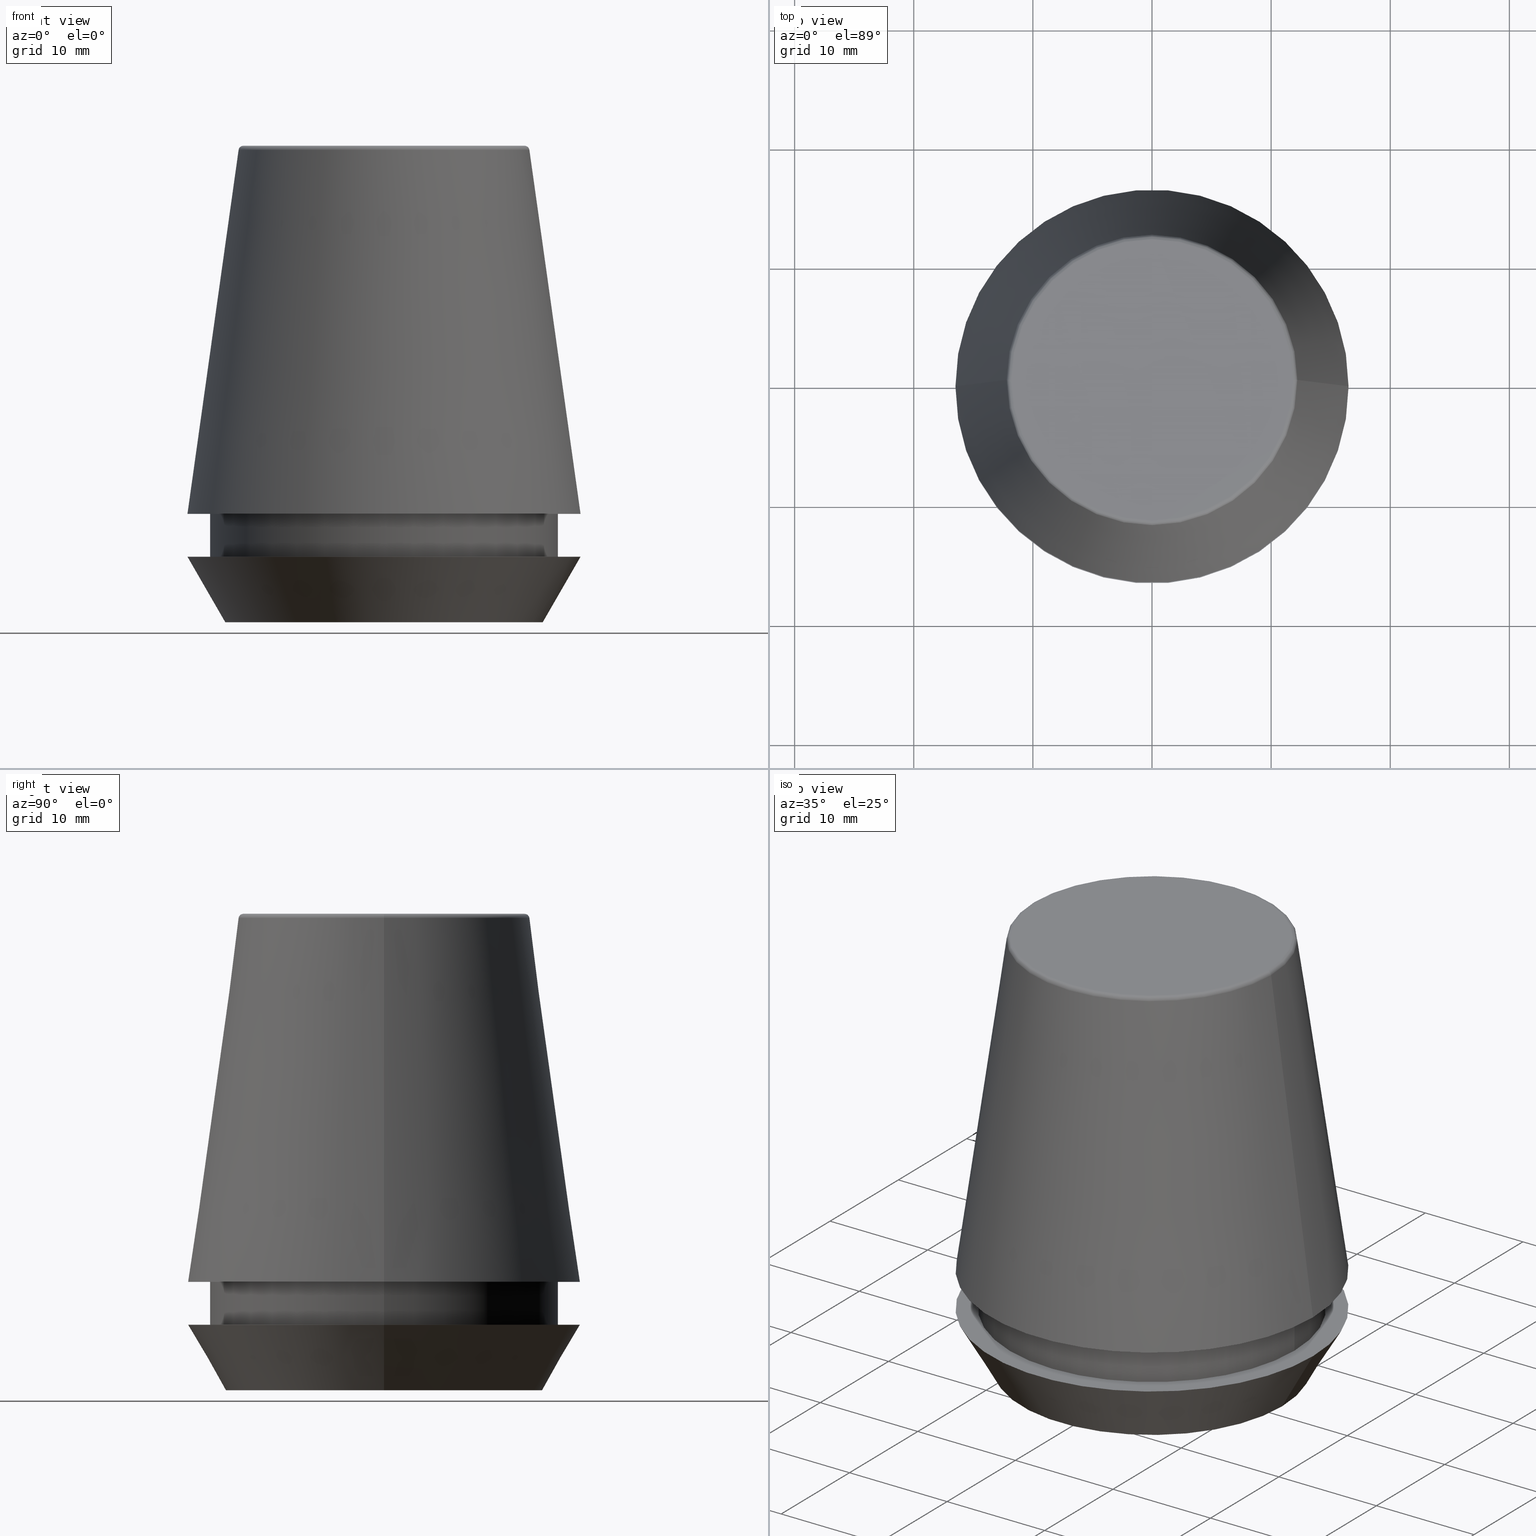
[diagram: canonical four-view strip — front | top / right | iso, engineering-drawing reading convention]
A machine part, canonical four-view strip (front | top / right | iso — engineering-drawing reading convention). The complete STEP part file that produces these views, byte-faithful:
ISO-10303-21;
HEADER;
FILE_DESCRIPTION (( 'STEP AP203' ),
    '1' );
FILE_NAME ('TAP COLLET ER 32G  16.0 X 12.0.STEP',
    '2019-04-09T11:30:25',
    ( '' ),
    ( '' ),
    'SwSTEP 2.0',
    'SolidWorks 2014',
    '' );
FILE_SCHEMA (( 'CONFIG_CONTROL_DESIGN' ));
ENDSEC;

DATA;
#1 = PLANE ( 'NONE',  #160 ) ;
#2 = COORDINATED_UNIVERSAL_TIME_OFFSET ( 5, 30, .AHEAD. ) ;
#3 = EDGE_CURVE ( 'NONE', #340, #167, #367, .T. ) ;
#4 = DIRECTION ( 'NONE',  ( -1.000000000000000000, 0.0000000000000000000, -0.0000000000000000000 ) ) ;
#5 = CARTESIAN_POINT ( 'NONE',  ( 13.32457351945710200, 0.0000000000000000000, 0.0000000000000000000 ) ) ;
#6 = CIRCLE ( 'NONE', #246, 16.50000000000000000 ) ;
#7 =( NAMED_UNIT ( * ) SI_UNIT ( $, .STERADIAN. ) SOLID_ANGLE_UNIT ( ) );
#8 = VERTEX_POINT ( 'NONE', #136 ) ;
#9 = CC_DESIGN_DATE_AND_TIME_ASSIGNMENT ( #182, #317, ( #25 ) ) ;
#10 = EDGE_LOOP ( 'NONE', ( #279, #210 ) ) ;
#11 = PERSON_AND_ORGANIZATION_ROLE ( 'creator' ) ;
#12 = APPROVAL_DATE_TIME ( #261, #168 ) ;
#13 = CARTESIAN_POINT ( 'NONE',  ( 11.80989888411031400, 0.0000000000000000000, 39.60000000000000100 ) ) ;
#14 = AXIS2_PLACEMENT_3D ( 'NONE', #174, #96, #296 ) ;
#15 = AXIS2_PLACEMENT_3D ( 'NONE', #350, #219, #184 ) ;
#16 = PERSON_AND_ORGANIZATION ( #202, #97 ) ;
#17 = DIRECTION ( 'NONE',  ( -0.0000000000000000000, -0.0000000000000000000, 1.000000000000000000 ) ) ;
#18 = ORIENTED_EDGE ( 'NONE', *, *, #190, .F. ) ;
#19 = ADVANCED_FACE ( 'NONE', ( #283 ), #242, .T. ) ;
#20 = CARTESIAN_POINT ( 'NONE',  ( 14.60000000000000000, 0.0000000000000000000, 9.099999999999997900 ) ) ;
#21 = CC_DESIGN_PERSON_AND_ORGANIZATION_ASSIGNMENT ( #49, #347, ( #25 ) ) ;
#22 = ADVANCED_BREP_SHAPE_REPRESENTATION ( 'TAP COLLET ER 32G  16.0 X 12.0', ( #135, #300 ), #254 ) ;
#23 = CARTESIAN_POINT ( 'NONE',  ( -13.32457351945710200, 1.631789631060672300E-015, 0.0000000000000000000 ) ) ;
#24 = AXIS2_PLACEMENT_3D ( 'NONE', #119, #301, #228 ) ;
#25 = SECURITY_CLASSIFICATION ( '', '', #101 ) ;
#26 = ADVANCED_FACE ( 'NONE', ( #253 ), #98, .F. ) ;
#27 = AXIS2_PLACEMENT_3D ( 'NONE', #311, #181, #4 ) ;
#28 = CARTESIAN_POINT ( 'NONE',  ( 0.0000000000000000000, 0.0000000000000000000, 40.00000000000000700 ) ) ;
#29 = DIRECTION ( 'NONE',  ( 0.1391731009600586900, 1.704378926181473100E-017, -0.9902680687415712500 ) ) ;
#30 = CARTESIAN_POINT ( 'NONE',  ( -14.60000000000000000, 1.787984326755135800E-015, 5.500000000000005300 ) ) ;
#31 = PLANE ( 'NONE',  #50 ) ;
#32 = AXIS2_PLACEMENT_3D ( 'NONE', #295, #265, #109 ) ;
#33 = FACE_OUTER_BOUND ( 'NONE', #380, .T. ) ;
#34 = AXIS2_PLACEMENT_3D ( 'NONE', #110, #113, #221 ) ;
#35 = APPROVAL_STATUS ( 'not_yet_approved' ) ;
#36 = EDGE_CURVE ( 'NONE', #247, #327, #231, .T. ) ;
#37 = DIRECTION ( 'NONE',  ( -0.0000000000000000000, -0.0000000000000000000, 1.000000000000000000 ) ) ;
#38 = APPROVAL_DATE_TIME ( #318, #91 ) ;
#39 = EDGE_CURVE ( 'NONE', #289, #341, #310, .T. ) ;
#40 = APPROVAL ( #131, 'UNSPECIFIED' ) ;
#41 = DIRECTION ( 'NONE',  ( 1.000000000000000000, 0.0000000000000000000, 0.0000000000000000000 ) ) ;
#42 = CARTESIAN_POINT ( 'NONE',  ( 0.0000000000000000000, 0.0000000000000000000, 5.500000000000005300 ) ) ;
#43 = CARTESIAN_POINT ( 'NONE',  ( -14.60000000000000000, 1.787984326755135800E-015, 101.8074564848000400 ) ) ;
#44 = CC_DESIGN_PERSON_AND_ORGANIZATION_ASSIGNMENT ( #382, #287, ( #107 ) ) ;
#45 = AXIS2_PLACEMENT_3D ( 'NONE', #293, #201, #169 ) ;
#46 = EDGE_CURVE ( 'NONE', #247, #341, #344, .T. ) ;
#47 = CARTESIAN_POINT ( 'NONE',  ( 13.32457351945710200, 0.0000000000000000000, 0.0000000000000000000 ) ) ;
#48 = EDGE_LOOP ( 'NONE', ( #146, #263, #288, #59 ) ) ;
#49 = PERSON_AND_ORGANIZATION ( #202, #97 ) ;
#50 = AXIS2_PLACEMENT_3D ( 'NONE', #212, #259, #180 ) ;
#51 = CARTESIAN_POINT ( 'NONE',  ( -11.80989888411031400, 1.470550059081603400E-015, 40.00000000000000700 ) ) ;
#52 = CIRCLE ( 'NONE', #89, 14.60000000000000000 ) ;
#53 = CARTESIAN_POINT ( 'NONE',  ( 0.0000000000000000000, 0.0000000000000000000, 0.0000000000000000000 ) ) ;
#54 = CARTESIAN_POINT ( 'NONE',  ( 0.0000000000000000000, 0.0000000000000000000, 101.8074564848000400 ) ) ;
#55 = VERTEX_POINT ( 'NONE', #30 ) ;
#56 = AXIS2_PLACEMENT_3D ( 'NONE', #80, #355, #149 ) ;
#57 = CARTESIAN_POINT ( 'NONE',  ( 0.0000000000000000000, 0.0000000000000000000, 39.65566924038402900 ) ) ;
#58 = VECTOR ( 'NONE', #271, 1000.000000000000000 ) ;
#59 = ORIENTED_EDGE ( 'NONE', *, *, #177, .T. ) ;
#60 = CARTESIAN_POINT ( 'NONE',  ( -11.80989888411031400, 1.446295486667959300E-015, 39.60000000000000100 ) ) ;
#61 = CONICAL_SURFACE ( 'NONE', #34, 16.50032537154048700, 0.1396263401595395900 ) ;
#62 = DIRECTION ( 'NONE',  ( -0.0000000000000000000, -0.0000000000000000000, 1.000000000000000000 ) ) ;
#63 = DIRECTION ( 'NONE',  ( 1.000000000000000000, 0.0000000000000000000, 0.0000000000000000000 ) ) ;
#64 = CC_DESIGN_PERSON_AND_ORGANIZATION_ASSIGNMENT ( #166, #73, ( #107 ) ) ;
#65 = VECTOR ( 'NONE', #383, 999.9999999999998900 ) ;
#66 = EDGE_CURVE ( 'NONE', #234, #247, #328, .T. ) ;
#67 = VERTEX_POINT ( 'NONE', #278 ) ;
#68 = CC_DESIGN_APPROVAL ( #91, ( #107 ) ) ;
#69 = DIRECTION ( 'NONE',  ( 1.000000000000000000, 0.0000000000000000000, 0.0000000000000000000 ) ) ;
#70 = CYLINDRICAL_SURFACE ( 'NONE', #150, 14.60000000000000000 ) ;
#71 = DIRECTION ( 'NONE',  ( 1.000000000000000000, 0.0000000000000000000, 0.0000000000000000000 ) ) ;
#72 = FACE_OUTER_BOUND ( 'NONE', #187, .T. ) ;
#73 = PERSON_AND_ORGANIZATION_ROLE ( 'creator' ) ;
#74 = ORIENTED_EDGE ( 'NONE', *, *, #3, .F. ) ;
#75 = PERSON_AND_ORGANIZATION ( #202, #97 ) ;
#76 = CONICAL_SURFACE ( 'NONE', #137, 13.32457351945710200, 0.5235987755982927100 ) ;
#77 = ORIENTED_EDGE ( 'NONE', *, *, #39, .F. ) ;
#78 = EDGE_LOOP ( 'NONE', ( #292, #125 ) ) ;
#79 = AXIS2_PLACEMENT_3D ( 'NONE', #186, #17, #41 ) ;
#80 = CARTESIAN_POINT ( 'NONE',  ( 0.0000000000000000000, 0.0000000000000000000, 101.8074564848000400 ) ) ;
#81 = VECTOR ( 'NONE', #90, 1000.000000000000000 ) ;
#82 = ORIENTED_EDGE ( 'NONE', *, *, #95, .F. ) ;
#83 = CALENDAR_DATE ( 2019, 9, 4 ) ;
#84 = DIRECTION ( 'NONE',  ( -0.0000000000000000000, -0.0000000000000000000, 1.000000000000000000 ) ) ;
#85 = AXIS2_PLACEMENT_3D ( 'NONE', #123, #62, #63 ) ;
#86 = VERTEX_POINT ( 'NONE', #214 ) ;
#87 = PERSON_AND_ORGANIZATION ( #202, #97 ) ;
#88 = DIRECTION ( 'NONE',  ( 1.000000000000000000, 0.0000000000000000000, 0.0000000000000000000 ) ) ;
#89 = AXIS2_PLACEMENT_3D ( 'NONE', #42, #314, #276 ) ;
#90 = DIRECTION ( 'NONE',  ( -0.0000000000000000000, -0.0000000000000000000, 1.000000000000000000 ) ) ;
#91 = APPROVAL ( #35, 'UNSPECIFIED' ) ;
#92 = COORDINATED_UNIVERSAL_TIME_OFFSET ( 5, 30, .AHEAD. ) ;
#93 = LOCAL_TIME ( 17, 0, 25.00000000000000000, #284 ) ;
#94 = AXIS2_PLACEMENT_3D ( 'NONE', #243, #266, #326 ) ;
#95 = EDGE_CURVE ( 'NONE', #327, #269, #154, .T. ) ;
#96 = DIRECTION ( 'NONE',  ( -0.0000000000000000000, -0.0000000000000000000, 1.000000000000000000 ) ) ;
#97 = ORGANIZATION ( 'UNSPECIFIED', 'UNSPECIFIED', '' ) ;
#98 = PLANE ( 'NONE',  #27 ) ;
#99 =( LENGTH_UNIT ( ) NAMED_UNIT ( * ) SI_UNIT ( .MILLI., .METRE. ) );
#100 = ORIENTED_EDGE ( 'NONE', *, *, #39, .T. ) ;
#101 = SECURITY_CLASSIFICATION_LEVEL ( 'unclassified' ) ;
#102 = CARTESIAN_POINT ( 'NONE',  ( 16.50032537154048700, 2.020707065114692300E-015, 9.099999999999997900 ) ) ;
#103 = FACE_OUTER_BOUND ( 'NONE', #320, .T. ) ;
#104 = EDGE_LOOP ( 'NONE', ( #316, #115 ) ) ;
#105 = CC_DESIGN_DATE_AND_TIME_ASSIGNMENT ( #294, #227, ( #352 ) ) ;
#106 = PERSON_AND_ORGANIZATION ( #202, #97 ) ;
#107 = PRODUCT_DEFINITION_FORMATION_WITH_SPECIFIED_SOURCE ( 'ANY', '', #142, .NOT_KNOWN. ) ;
#108 = ORIENTED_EDGE ( 'NONE', *, *, #213, .F. ) ;
#109 = DIRECTION ( 'NONE',  ( 1.000000000000000000, 0.0000000000000000000, 0.0000000000000000000 ) ) ;
#110 = CARTESIAN_POINT ( 'NONE',  ( 0.0000000000000000000, 0.0000000000000000000, 9.099999999999997900 ) ) ;
#111 = AXIS2_PLACEMENT_3D ( 'NONE', #13, #196, #349 ) ;
#112 = CARTESIAN_POINT ( 'NONE',  ( 16.50032537154048700, 2.020707065114692300E-015, 9.099999999999997900 ) ) ;
#113 = DIRECTION ( 'NONE',  ( 0.0000000000000000000, 0.0000000000000000000, -1.000000000000000000 ) ) ;
#114 = SHAPE_DEFINITION_REPRESENTATION ( #376, #22 ) ;
#115 = ORIENTED_EDGE ( 'NONE', *, *, #183, .T. ) ;
#116 = CIRCLE ( 'NONE', #262, 12.20600611160694300 ) ;
#117 = DIRECTION ( 'NONE',  ( -0.0000000000000000000, -0.0000000000000000000, 1.000000000000000000 ) ) ;
#118 = DIRECTION ( 'NONE',  ( 1.000000000000000000, 0.0000000000000000000, 0.0000000000000000000 ) ) ;
#119 = CARTESIAN_POINT ( 'NONE',  ( 0.0000000000000000000, 0.0000000000000000000, 9.099999999999997900 ) ) ;
#120 = AXIS2_PLACEMENT_3D ( 'NONE', #60, #218, #158 ) ;
#121 = CARTESIAN_POINT ( 'NONE',  ( 0.0000000000000000000, 0.0000000000000000000, 9.099999999999997900 ) ) ;
#122 = EDGE_CURVE ( 'NONE', #247, #234, #116, .T. ) ;
#123 = CARTESIAN_POINT ( 'NONE',  ( 0.0000000000000000000, 0.0000000000000000000, 9.099999999999997900 ) ) ;
#124 = CC_DESIGN_PERSON_AND_ORGANIZATION_ASSIGNMENT ( #16, #11, ( #352 ) ) ;
#125 = ORIENTED_EDGE ( 'NONE', *, *, #95, .T. ) ;
#126 = FACE_OUTER_BOUND ( 'NONE', #104, .T. ) ;
#127 = CARTESIAN_POINT ( 'NONE',  ( 0.0000000000000000000, 0.0000000000000000000, 0.0000000000000000000 ) ) ;
#128 = EDGE_CURVE ( 'NONE', #55, #373, #275, .T. ) ;
#129 = CIRCLE ( 'NONE', #141, 16.50032537154048700 ) ;
#130 = PERSON_AND_ORGANIZATION_ROLE ( 'design_owner' ) ;
#131 = APPROVAL_STATUS ( 'not_yet_approved' ) ;
#132 = ORIENTED_EDGE ( 'NONE', *, *, #299, .T. ) ;
#133 = CONICAL_SURFACE ( 'NONE', #14, 13.32457351945710200, 0.5235987755982927100 ) ;
#134 = CARTESIAN_POINT ( 'NONE',  ( 14.60000000000000000, 0.0000000000000000000, 5.500000000000005300 ) ) ;
#135 = MANIFOLD_SOLID_BREP ( 'Revolve1', #374 ) ;
#136 = CARTESIAN_POINT ( 'NONE',  ( -16.50000000000000000, 2.020667218593133100E-015, 5.500000000000005300 ) ) ;
#137 = AXIS2_PLACEMENT_3D ( 'NONE', #203, #37, #69 ) ;
#138 = PERSON_AND_ORGANIZATION ( #202, #97 ) ;
#139 = EDGE_LOOP ( 'NONE', ( #230, #77 ) ) ;
#140 = VECTOR ( 'NONE', #338, 1000.000000000000000 ) ;
#141 = AXIS2_PLACEMENT_3D ( 'NONE', #237, #268, #371 ) ;
#142 = PRODUCT ( 'TAP COLLET ER 32G  16.0 X 12.0', 'TAP COLLET ER 32G  16.0 X 12.0', '', ( #313 ) ) ;
#143 = VECTOR ( 'NONE', #179, 999.9999999999998900 ) ;
#144 = CARTESIAN_POINT ( 'NONE',  ( 0.0000000000000000000, 0.0000000000000000000, 40.00000000000000700 ) ) ;
#145 = FACE_OUTER_BOUND ( 'NONE', #333, .T. ) ;
#146 = ORIENTED_EDGE ( 'NONE', *, *, #369, .F. ) ;
#147 = COORDINATED_UNIVERSAL_TIME_OFFSET ( 5, 30, .AHEAD. ) ;
#148 = CARTESIAN_POINT ( 'NONE',  ( 14.60000000000000000, 0.0000000000000000000, 101.8074564848000400 ) ) ;
#149 = DIRECTION ( 'NONE',  ( 1.000000000000000000, 0.0000000000000000000, 0.0000000000000000000 ) ) ;
#150 = AXIS2_PLACEMENT_3D ( 'NONE', #54, #359, #176 ) ;
#151 = ADVANCED_FACE ( 'NONE', ( #334, #126 ), #1, .F. ) ;
#152 = DIRECTION ( 'NONE',  ( 0.0000000000000000000, 0.0000000000000000000, -1.000000000000000000 ) ) ;
#153 = DIRECTION ( 'NONE',  ( 1.000000000000000000, 0.0000000000000000000, 0.0000000000000000000 ) ) ;
#154 = CIRCLE ( 'NONE', #372, 11.80989888411031400 ) ;
#155 = DIRECTION ( 'NONE',  ( 1.000000000000000000, 0.0000000000000000000, 0.0000000000000000000 ) ) ;
#156 = ORIENTED_EDGE ( 'NONE', *, *, #195, .T. ) ;
#157 = LOCAL_TIME ( 17, 0, 25.00000000000000000, #171 ) ;
#158 = DIRECTION ( 'NONE',  ( -1.000000000000000000, 1.224646799147352500E-016, 0.0000000000000000000 ) ) ;
#159 = ADVANCED_FACE ( 'NONE', ( #145 ), #70, .T. ) ;
#160 = AXIS2_PLACEMENT_3D ( 'NONE', #248, #152, #211 ) ;
#161 = ORIENTED_EDGE ( 'NONE', *, *, #369, .T. ) ;
#162 = DESIGN_CONTEXT ( 'detailed design', #346, 'design' ) ;
#163 = AXIS2_PLACEMENT_3D ( 'NONE', #53, #384, #88 ) ;
#164 = APPLICATION_PROTOCOL_DEFINITION ( 'international standard', 'config_control_design', 1994, #346 ) ;
#165 = ORIENTED_EDGE ( 'NONE', *, *, #264, .T. ) ;
#166 = PERSON_AND_ORGANIZATION ( #202, #97 ) ;
#167 = VERTEX_POINT ( 'NONE', #208 ) ;
#168 = APPROVAL ( #368, 'UNSPECIFIED' ) ;
#169 = DIRECTION ( 'NONE',  ( 1.000000000000000000, 0.0000000000000000000, 0.0000000000000000000 ) ) ;
#170 = PRODUCT_RELATED_PRODUCT_CATEGORY ( 'detail', '', ( #142 ) ) ;
#171 = COORDINATED_UNIVERSAL_TIME_OFFSET ( 5, 30, .AHEAD. ) ;
#172 = DIRECTION ( 'NONE',  ( 1.000000000000000000, 0.0000000000000000000, 0.0000000000000000000 ) ) ;
#173 = EDGE_CURVE ( 'NONE', #373, #340, #175, .T. ) ;
#174 = CARTESIAN_POINT ( 'NONE',  ( 0.0000000000000000000, 0.0000000000000000000, 0.0000000000000000000 ) ) ;
#175 = LINE ( 'NONE', #148, #58 ) ;
#176 = DIRECTION ( 'NONE',  ( 1.000000000000000000, 0.0000000000000000000, 0.0000000000000000000 ) ) ;
#177 = EDGE_CURVE ( 'NONE', #341, #289, #129, .T. ) ;
#178 = DIRECTION ( 'NONE',  ( -0.0000000000000000000, -0.0000000000000000000, 1.000000000000000000 ) ) ;
#179 = DIRECTION ( 'NONE',  ( 0.4999999999999947300, 0.0000000000000000000, 0.8660254037844418200 ) ) ;
#180 = DIRECTION ( 'NONE',  ( 1.000000000000000000, 0.0000000000000000000, 0.0000000000000000000 ) ) ;
#181 = DIRECTION ( 'NONE',  ( 0.0000000000000000000, 0.0000000000000000000, -1.000000000000000000 ) ) ;
#182 = DATE_AND_TIME ( #303, #157 ) ;
#183 = EDGE_CURVE ( 'NONE', #8, #86, #6, .T. ) ;
#184 = DIRECTION ( 'NONE',  ( 1.000000000000000000, 0.0000000000000000000, 0.0000000000000000000 ) ) ;
#185 = CIRCLE ( 'NONE', #111, 0.4000000000000045200 ) ;
#186 = CARTESIAN_POINT ( 'NONE',  ( 0.0000000000000000000, 0.0000000000000000000, 9.099999999999997900 ) ) ;
#187 = EDGE_LOOP ( 'NONE', ( #165, #197, #306, #260 ) ) ;
#188 =( NAMED_UNIT ( * ) PLANE_ANGLE_UNIT ( ) SI_UNIT ( $, .RADIAN. ) );
#189 = CALENDAR_DATE ( 2019, 9, 4 ) ;
#190 = EDGE_CURVE ( 'NONE', #67, #251, #387, .T. ) ;
#191 = APPROVAL_ROLE ( '' ) ;
#192 = CIRCLE ( 'NONE', #94, 16.50000000000000000 ) ;
#193 = CC_DESIGN_SECURITY_CLASSIFICATION ( #25, ( #107 ) ) ;
#194 = APPROVAL_ROLE ( '' ) ;
#195 = EDGE_CURVE ( 'NONE', #234, #269, #185, .T. ) ;
#196 = DIRECTION ( 'NONE',  ( 0.0000000000000000000, -1.000000000000000000, 0.0000000000000000000 ) ) ;
#197 = ORIENTED_EDGE ( 'NONE', *, *, #213, .T. ) ;
#198 = CALENDAR_DATE ( 2019, 9, 4 ) ;
#199 = AXIS2_PLACEMENT_3D ( 'NONE', #144, #325, #379 ) ;
#200 = EDGE_LOOP ( 'NONE', ( #108, #381, #297, #204 ) ) ;
#201 = DIRECTION ( 'NONE',  ( -0.0000000000000000000, -0.0000000000000000000, 1.000000000000000000 ) ) ;
#202 = PERSON ( 'UNSPECIFIED', 'UNSPECIFIED', 'UNSPECIFIED', ('UNSPECIFIED'), ('UNSPECIFIED'), ('UNSPECIFIED') ) ;
#203 = CARTESIAN_POINT ( 'NONE',  ( 0.0000000000000000000, 0.0000000000000000000, 0.0000000000000000000 ) ) ;
#204 = ORIENTED_EDGE ( 'NONE', *, *, #183, .F. ) ;
#205 = ORIENTED_EDGE ( 'NONE', *, *, #36, .T. ) ;
#206 = FACE_OUTER_BOUND ( 'NONE', #291, .T. ) ;
#207 = APPROVAL_PERSON_ORGANIZATION ( #87, #40, #194 ) ;
#208 = CARTESIAN_POINT ( 'NONE',  ( -14.60000000000000000, 1.787984326755135800E-015, 9.099999999999997900 ) ) ;
#209 = EDGE_CURVE ( 'NONE', #86, #8, #192, .T. ) ;
#210 = ORIENTED_EDGE ( 'NONE', *, *, #128, .F. ) ;
#211 = DIRECTION ( 'NONE',  ( -1.000000000000000000, 0.0000000000000000000, -0.0000000000000000000 ) ) ;
#212 = CARTESIAN_POINT ( 'NONE',  ( 0.0000000000000000000, 16.50032537154048700, 9.099999999999999600 ) ) ;
#213 = EDGE_CURVE ( 'NONE', #67, #8, #238, .T. ) ;
#214 = CARTESIAN_POINT ( 'NONE',  ( 16.50000000000000000, 0.0000000000000000000, 5.500000000000005300 ) ) ;
#215 = LINE ( 'NONE', #47, #143 ) ;
#216 = CARTESIAN_POINT ( 'NONE',  ( -16.50032537154048700, 0.0000000000000000000, 9.099999999999997900 ) ) ;
#217 = CC_DESIGN_APPROVAL ( #40, ( #25 ) ) ;
#218 = DIRECTION ( 'NONE',  ( 1.224646799147353200E-016, 1.000000000000000000, 0.0000000000000000000 ) ) ;
#219 = DIRECTION ( 'NONE',  ( -0.0000000000000000000, -0.0000000000000000000, 1.000000000000000000 ) ) ;
#220 = ORIENTED_EDGE ( 'NONE', *, *, #226, .T. ) ;
#221 = DIRECTION ( 'NONE',  ( -1.000000000000000000, 0.0000000000000000000, 0.0000000000000000000 ) ) ;
#222 = ORIENTED_EDGE ( 'NONE', *, *, #173, .F. ) ;
#223 = APPROVAL_DATE_TIME ( #235, #40 ) ;
#224 = APPLICATION_CONTEXT ( 'configuration controlled 3d designs of mechanical parts and assemblies' ) ;
#225 = AXIS2_PLACEMENT_3D ( 'NONE', #386, #117, #330 ) ;
#226 = EDGE_CURVE ( 'NONE', #373, #55, #52, .T. ) ;
#227 = DATE_TIME_ROLE ( 'creation_date' ) ;
#228 = DIRECTION ( 'NONE',  ( -1.000000000000000000, 0.0000000000000000000, 0.0000000000000000000 ) ) ;
#229 = ADVANCED_FACE ( 'NONE', ( #33 ), #357, .T. ) ;
#230 = ORIENTED_EDGE ( 'NONE', *, *, #177, .F. ) ;
#231 = CIRCLE ( 'NONE', #120, 0.4000000000000028000 ) ;
#232 = AXIS2_PLACEMENT_3D ( 'NONE', #361, #84, #172 ) ;
#233 = EDGE_LOOP ( 'NONE', ( #375, #309 ) ) ;
#234 = VERTEX_POINT ( 'NONE', #339 ) ;
#235 = DATE_AND_TIME ( #83, #93 ) ;
#236 = CARTESIAN_POINT ( 'NONE',  ( -16.50032537154048700, 0.0000000000000000000, 9.099999999999997900 ) ) ;
#237 = CARTESIAN_POINT ( 'NONE',  ( 0.0000000000000000000, 0.0000000000000000000, 9.099999999999997900 ) ) ;
#238 = LINE ( 'NONE', #23, #65 ) ;
#239 = CIRCLE ( 'NONE', #79, 14.60000000000000000 ) ;
#240 = DIRECTION ( 'NONE',  ( 1.000000000000000000, 0.0000000000000000000, 0.0000000000000000000 ) ) ;
#241 = ORIENTED_EDGE ( 'NONE', *, *, #195, .F. ) ;
#242 = TOROIDAL_SURFACE ( 'NONE', #15, 11.80989888411031400, 0.4000000000000026900 ) ;
#243 = CARTESIAN_POINT ( 'NONE',  ( 0.0000000000000000000, 0.0000000000000000000, 5.500000000000005300 ) ) ;
#244 = APPROVAL_PERSON_ORGANIZATION ( #106, #168, #191 ) ;
#245 = DIRECTION ( 'NONE',  ( -0.0000000000000000000, -0.0000000000000000000, 1.000000000000000000 ) ) ;
#246 = AXIS2_PLACEMENT_3D ( 'NONE', #329, #272, #240 ) ;
#247 = VERTEX_POINT ( 'NONE', #363 ) ;
#248 = CARTESIAN_POINT ( 'NONE',  ( 0.0000000000000000000, 16.50000000000000000, 5.500000000000002700 ) ) ;
#249 = PLANE ( 'NONE',  #32 ) ;
#250 = ADVANCED_FACE ( 'NONE', ( #351, #365 ), #31, .F. ) ;
#251 = VERTEX_POINT ( 'NONE', #5 ) ;
#252 = LOCAL_TIME ( 17, 0, 25.00000000000000000, #147 ) ;
#253 = FACE_OUTER_BOUND ( 'NONE', #78, .T. ) ;
#254 =( GEOMETRIC_REPRESENTATION_CONTEXT ( 3 ) GLOBAL_UNCERTAINTY_ASSIGNED_CONTEXT ( ( #364 ) ) GLOBAL_UNIT_ASSIGNED_CONTEXT ( ( #99, #188, #7 ) ) REPRESENTATION_CONTEXT ( 'NONE', 'WORKASPACE' ) );
#255 = CIRCLE ( 'NONE', #199, 11.80989888411031400 ) ;
#256 = ORIENTED_EDGE ( 'NONE', *, *, #46, .F. ) ;
#257 = APPROVAL_ROLE ( '' ) ;
#258 = EDGE_CURVE ( 'NONE', #167, #340, #239, .T. ) ;
#259 = DIRECTION ( 'NONE',  ( 0.0000000000000000000, -0.0000000000000000000, 1.000000000000000000 ) ) ;
#260 = ORIENTED_EDGE ( 'NONE', *, *, #353, .F. ) ;
#261 = DATE_AND_TIME ( #198, #273 ) ;
#262 = AXIS2_PLACEMENT_3D ( 'NONE', #57, #331, #304 ) ;
#263 = ORIENTED_EDGE ( 'NONE', *, *, #122, .F. ) ;
#264 = EDGE_CURVE ( 'NONE', #251, #67, #342, .T. ) ;
#265 = DIRECTION ( 'NONE',  ( 0.0000000000000000000, -0.0000000000000000000, 1.000000000000000000 ) ) ;
#266 = DIRECTION ( 'NONE',  ( -0.0000000000000000000, -0.0000000000000000000, 1.000000000000000000 ) ) ;
#267 = LINE ( 'NONE', #102, #360 ) ;
#268 = DIRECTION ( 'NONE',  ( -0.0000000000000000000, -0.0000000000000000000, 1.000000000000000000 ) ) ;
#269 = VERTEX_POINT ( 'NONE', #281 ) ;
#270 = EDGE_LOOP ( 'NONE', ( #343, #354, #156, #82 ) ) ;
#271 = DIRECTION ( 'NONE',  ( -0.0000000000000000000, -0.0000000000000000000, 1.000000000000000000 ) ) ;
#272 = DIRECTION ( 'NONE',  ( -0.0000000000000000000, -0.0000000000000000000, 1.000000000000000000 ) ) ;
#273 = LOCAL_TIME ( 17, 0, 25.00000000000000000, #92 ) ;
#274 = ORIENTED_EDGE ( 'NONE', *, *, #128, .T. ) ;
#275 = CIRCLE ( 'NONE', #225, 14.60000000000000000 ) ;
#276 = DIRECTION ( 'NONE',  ( 1.000000000000000000, 0.0000000000000000000, 0.0000000000000000000 ) ) ;
#277 = FACE_OUTER_BOUND ( 'NONE', #200, .T. ) ;
#278 = CARTESIAN_POINT ( 'NONE',  ( -13.32457351945710200, 1.826228424826902600E-015, 0.0000000000000000000 ) ) ;
#279 = ORIENTED_EDGE ( 'NONE', *, *, #226, .F. ) ;
#280 = ADVANCED_FACE ( 'NONE', ( #378 ), #249, .F. ) ;
#281 = CARTESIAN_POINT ( 'NONE',  ( 11.80989888411031400, 0.0000000000000000000, 40.00000000000000700 ) ) ;
#282 = ORIENTED_EDGE ( 'NONE', *, *, #66, .F. ) ;
#283 = FACE_OUTER_BOUND ( 'NONE', #270, .T. ) ;
#284 = COORDINATED_UNIVERSAL_TIME_OFFSET ( 5, 30, .AHEAD. ) ;
#285 = APPLICATION_PROTOCOL_DEFINITION ( 'international standard', 'config_control_design', 1994, #224 ) ;
#286 = AXIS2_PLACEMENT_3D ( 'NONE', #305, #178, #153 ) ;
#287 = PERSON_AND_ORGANIZATION_ROLE ( 'design_supplier' ) ;
#288 = ORIENTED_EDGE ( 'NONE', *, *, #46, .T. ) ;
#289 = VERTEX_POINT ( 'NONE', #112 ) ;
#290 = LOCAL_TIME ( 17, 0, 25.00000000000000000, #2 ) ;
#291 = EDGE_LOOP ( 'NONE', ( #302, #205, #385, #241 ) ) ;
#292 = ORIENTED_EDGE ( 'NONE', *, *, #358, .T. ) ;
#293 = CARTESIAN_POINT ( 'NONE',  ( 0.0000000000000000000, 0.0000000000000000000, 0.0000000000000000000 ) ) ;
#294 = DATE_AND_TIME ( #345, #252 ) ;
#295 = CARTESIAN_POINT ( 'NONE',  ( 0.0000000000000000000, 0.0000000000000000000, 0.0000000000000000000 ) ) ;
#296 = DIRECTION ( 'NONE',  ( 1.000000000000000000, 0.0000000000000000000, 0.0000000000000000000 ) ) ;
#297 = ORIENTED_EDGE ( 'NONE', *, *, #353, .T. ) ;
#298 = CONICAL_SURFACE ( 'NONE', #24, 16.50032537154048700, 0.1396263401595395900 ) ;
#299 = EDGE_CURVE ( 'NONE', #55, #167, #322, .T. ) ;
#300 = AXIS2_PLACEMENT_3D ( 'NONE', #127, #312, #71 ) ;
#301 = DIRECTION ( 'NONE',  ( 0.0000000000000000000, 0.0000000000000000000, -1.000000000000000000 ) ) ;
#302 = ORIENTED_EDGE ( 'NONE', *, *, #66, .T. ) ;
#303 = CALENDAR_DATE ( 2019, 9, 4 ) ;
#304 = DIRECTION ( 'NONE',  ( 1.000000000000000000, 0.0000000000000000000, 0.0000000000000000000 ) ) ;
#305 = CARTESIAN_POINT ( 'NONE',  ( 0.0000000000000000000, 0.0000000000000000000, 39.65566924038402900 ) ) ;
#306 = ORIENTED_EDGE ( 'NONE', *, *, #209, .F. ) ;
#307 = ADVANCED_FACE ( 'NONE', ( #332 ), #61, .T. ) ;
#308 = ORIENTED_EDGE ( 'NONE', *, *, #299, .F. ) ;
#309 = ORIENTED_EDGE ( 'NONE', *, *, #258, .T. ) ;
#310 = CIRCLE ( 'NONE', #321, 16.50032537154048700 ) ;
#311 = CARTESIAN_POINT ( 'NONE',  ( 0.0000000000000000000, 11.80989888411031400, 40.00000000000000700 ) ) ;
#312 = DIRECTION ( 'NONE',  ( 0.0000000000000000000, 0.0000000000000000000, 1.000000000000000000 ) ) ;
#313 = MECHANICAL_CONTEXT ( 'NONE', #224, 'mechanical' ) ;
#314 = DIRECTION ( 'NONE',  ( -0.0000000000000000000, -0.0000000000000000000, 1.000000000000000000 ) ) ;
#315 = ORIENTED_EDGE ( 'NONE', *, *, #264, .F. ) ;
#316 = ORIENTED_EDGE ( 'NONE', *, *, #209, .T. ) ;
#317 = DATE_TIME_ROLE ( 'classification_date' ) ;
#318 = DATE_AND_TIME ( #189, #290 ) ;
#319 = ORIENTED_EDGE ( 'NONE', *, *, #258, .F. ) ;
#320 = EDGE_LOOP ( 'NONE', ( #282, #161, #100, #256 ) ) ;
#321 = AXIS2_PLACEMENT_3D ( 'NONE', #121, #337, #155 ) ;
#322 = LINE ( 'NONE', #43, #81 ) ;
#323 = CC_DESIGN_PERSON_AND_ORGANIZATION_ASSIGNMENT ( #138, #130, ( #142 ) ) ;
#324 = APPROVAL_PERSON_ORGANIZATION ( #75, #91, #257 ) ;
#325 = DIRECTION ( 'NONE',  ( -0.0000000000000000000, -0.0000000000000000000, 1.000000000000000000 ) ) ;
#326 = DIRECTION ( 'NONE',  ( 1.000000000000000000, 0.0000000000000000000, 0.0000000000000000000 ) ) ;
#327 = VERTEX_POINT ( 'NONE', #51 ) ;
#328 = CIRCLE ( 'NONE', #286, 12.20600611160694300 ) ;
#329 = CARTESIAN_POINT ( 'NONE',  ( 0.0000000000000000000, 0.0000000000000000000, 5.500000000000005300 ) ) ;
#330 = DIRECTION ( 'NONE',  ( 1.000000000000000000, 0.0000000000000000000, 0.0000000000000000000 ) ) ;
#331 = DIRECTION ( 'NONE',  ( -0.0000000000000000000, -0.0000000000000000000, 1.000000000000000000 ) ) ;
#332 = FACE_OUTER_BOUND ( 'NONE', #48, .T. ) ;
#333 = EDGE_LOOP ( 'NONE', ( #308, #274, #366, #319 ) ) ;
#334 = FACE_BOUND ( 'NONE', #10, .T. ) ;
#335 = ADVANCED_FACE ( 'NONE', ( #103 ), #298, .T. ) ;
#336 = ADVANCED_FACE ( 'NONE', ( #72 ), #133, .T. ) ;
#337 = DIRECTION ( 'NONE',  ( -0.0000000000000000000, -0.0000000000000000000, 1.000000000000000000 ) ) ;
#338 = DIRECTION ( 'NONE',  ( -0.1391731009600586900, 0.0000000000000000000, -0.9902680687415712500 ) ) ;
#339 = CARTESIAN_POINT ( 'NONE',  ( 12.20600611160694300, 1.757755848304969800E-015, 39.65566924038402900 ) ) ;
#340 = VERTEX_POINT ( 'NONE', #20 ) ;
#341 = VERTEX_POINT ( 'NONE', #236 ) ;
#342 = CIRCLE ( 'NONE', #45, 13.32457351945710200 ) ;
#343 = ORIENTED_EDGE ( 'NONE', *, *, #36, .F. ) ;
#344 = LINE ( 'NONE', #216, #140 ) ;
#345 = CALENDAR_DATE ( 2019, 9, 4 ) ;
#346 = APPLICATION_CONTEXT ( 'configuration controlled 3d designs of mechanical parts and assemblies' ) ;
#347 = PERSON_AND_ORGANIZATION_ROLE ( 'classification_officer' ) ;
#348 = TOROIDAL_SURFACE ( 'NONE', #232, 11.80989888411031400, 0.4000000000000026900 ) ;
#349 = DIRECTION ( 'NONE',  ( 0.0000000000000000000, 0.0000000000000000000, -1.000000000000000000 ) ) ;
#350 = CARTESIAN_POINT ( 'NONE',  ( 0.0000000000000000000, 0.0000000000000000000, 39.60000000000000100 ) ) ;
#351 = FACE_OUTER_BOUND ( 'NONE', #139, .T. ) ;
#352 = PRODUCT_DEFINITION ( 'UNKNOWN', '', #107, #162 ) ;
#353 = EDGE_CURVE ( 'NONE', #251, #86, #215, .T. ) ;
#354 = ORIENTED_EDGE ( 'NONE', *, *, #122, .T. ) ;
#355 = DIRECTION ( 'NONE',  ( -0.0000000000000000000, -0.0000000000000000000, 1.000000000000000000 ) ) ;
#356 = CC_DESIGN_APPROVAL ( #168, ( #352 ) ) ;
#357 = CYLINDRICAL_SURFACE ( 'NONE', #56, 14.60000000000000000 ) ;
#358 = EDGE_CURVE ( 'NONE', #269, #327, #255, .T. ) ;
#359 = DIRECTION ( 'NONE',  ( -0.0000000000000000000, -0.0000000000000000000, 1.000000000000000000 ) ) ;
#360 = VECTOR ( 'NONE', #29, 1000.000000000000000 ) ;
#361 = CARTESIAN_POINT ( 'NONE',  ( 0.0000000000000000000, 0.0000000000000000000, 39.60000000000000100 ) ) ;
#362 = ADVANCED_FACE ( 'NONE', ( #206 ), #348, .T. ) ;
#363 = CARTESIAN_POINT ( 'NONE',  ( -12.20600611160694300, 0.0000000000000000000, 39.65566924038402900 ) ) ;
#364 = UNCERTAINTY_MEASURE_WITH_UNIT (LENGTH_MEASURE( 1.000000000000000100E-005 ), #99, 'distance_accuracy_value', 'NONE');
#365 = FACE_BOUND ( 'NONE', #233, .T. ) ;
#366 = ORIENTED_EDGE ( 'NONE', *, *, #173, .T. ) ;
#367 = CIRCLE ( 'NONE', #85, 14.60000000000000000 ) ;
#368 = APPROVAL_STATUS ( 'not_yet_approved' ) ;
#369 = EDGE_CURVE ( 'NONE', #234, #289, #267, .T. ) ;
#370 = EDGE_LOOP ( 'NONE', ( #315, #18 ) ) ;
#371 = DIRECTION ( 'NONE',  ( 1.000000000000000000, 0.0000000000000000000, 0.0000000000000000000 ) ) ;
#372 = AXIS2_PLACEMENT_3D ( 'NONE', #28, #245, #118 ) ;
#373 = VERTEX_POINT ( 'NONE', #134 ) ;
#374 = CLOSED_SHELL ( 'NONE', ( #362, #335, #229, #336, #26, #280, #377, #151, #159, #250, #307, #19 ) ) ;
#375 = ORIENTED_EDGE ( 'NONE', *, *, #3, .T. ) ;
#376 = PRODUCT_DEFINITION_SHAPE ( 'NONE', 'NONE',  #352 ) ;
#377 = ADVANCED_FACE ( 'NONE', ( #277 ), #76, .T. ) ;
#378 = FACE_OUTER_BOUND ( 'NONE', #370, .T. ) ;
#379 = DIRECTION ( 'NONE',  ( 1.000000000000000000, 0.0000000000000000000, 0.0000000000000000000 ) ) ;
#380 = EDGE_LOOP ( 'NONE', ( #220, #132, #74, #222 ) ) ;
#381 = ORIENTED_EDGE ( 'NONE', *, *, #190, .T. ) ;
#382 = PERSON_AND_ORGANIZATION ( #202, #97 ) ;
#383 = DIRECTION ( 'NONE',  ( -0.4999999999999947300, 6.123233995736700700E-017, 0.8660254037844418200 ) ) ;
#384 = DIRECTION ( 'NONE',  ( -0.0000000000000000000, -0.0000000000000000000, 1.000000000000000000 ) ) ;
#385 = ORIENTED_EDGE ( 'NONE', *, *, #358, .F. ) ;
#386 = CARTESIAN_POINT ( 'NONE',  ( 0.0000000000000000000, 0.0000000000000000000, 5.500000000000005300 ) ) ;
#387 = CIRCLE ( 'NONE', #163, 13.32457351945710200 ) ;
ENDSEC;
END-ISO-10303-21;
